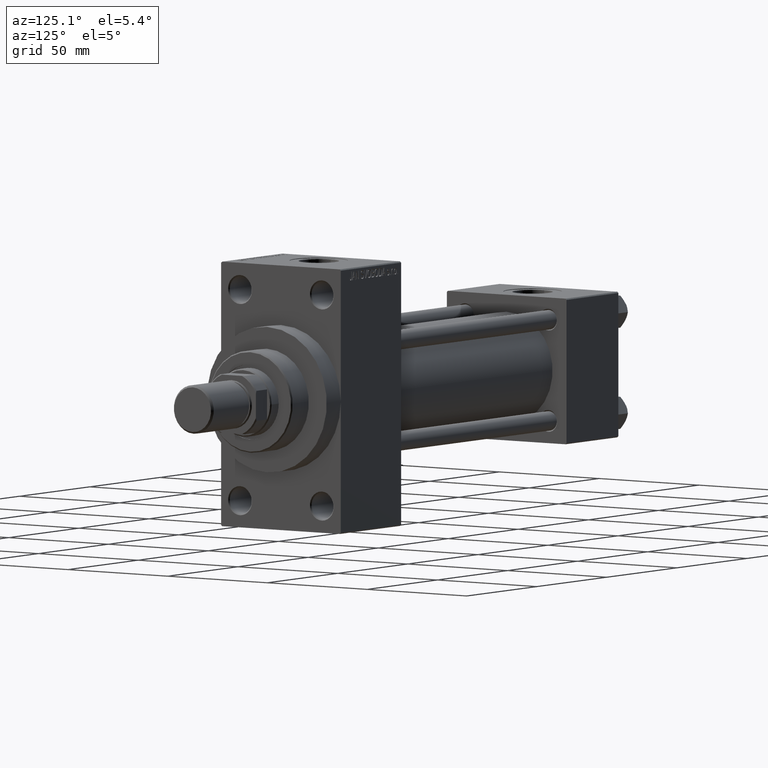
[diagram: clean part render]
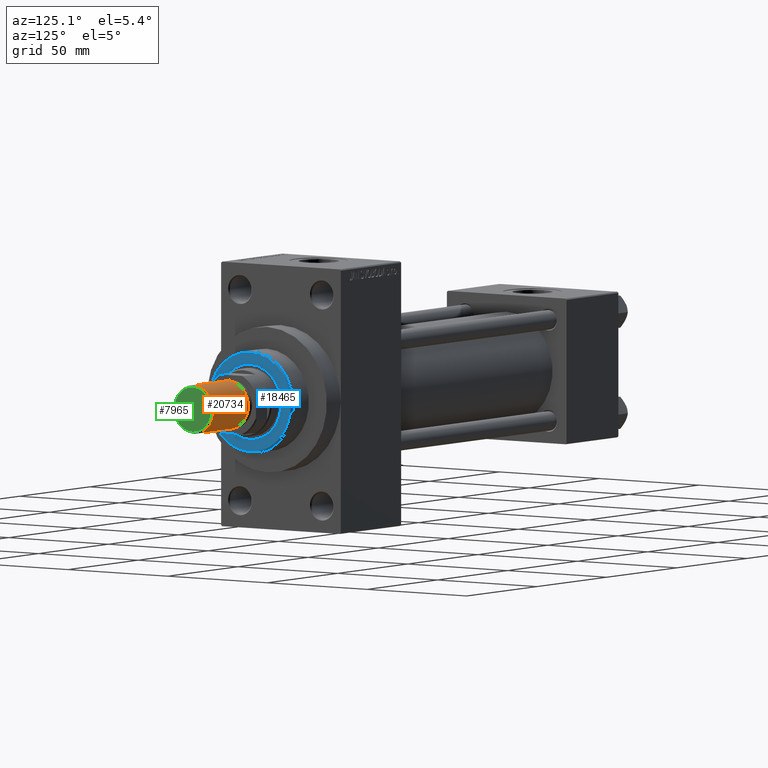
[diagram: same view with three faces highlighted in distinct colors, each labeled with its STEP entity id]
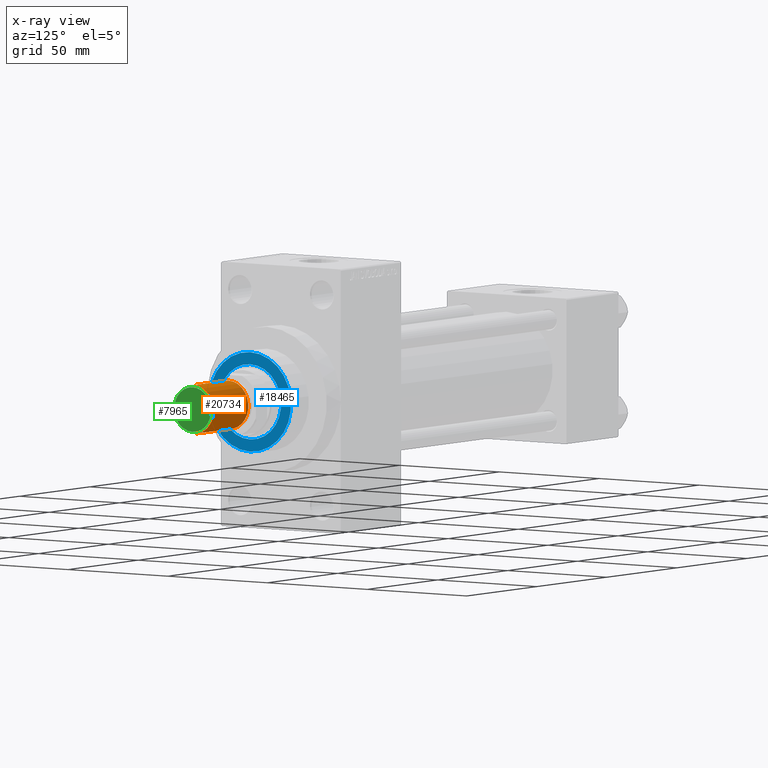
[diagram: x-ray of the same camera — body ghosted, the three highlighted faces saturated]
A machine part, auxiliary view with three faces highlighted in distinct colors.
The next image is the same camera in x-ray (body ghosted, the three faces saturated) — at least one of them is partly hidden behind the body in this view.
Their STEP definitions:

[orange] entity #20734 — the highlighted cylindrical surface (edge-blend (fillet) strip) has radius 10 mm, axis along (1, -0, -0).
#141 = LINE ( 'NONE', #29548, #25993 ) ;
#385 = DIRECTION ( 'NONE',  ( -0.000000000000000000, -0.000000000000000000, -1.000000000000000000 ) ) ;
#1426 = CARTESIAN_POINT ( 'NONE',  ( -10.00000000000000000, 0.000000000000000000, 0.8000000000000055955 ) ) ;
#1491 = VERTEX_POINT ( 'NONE', #1426 ) ;
#2860 = AXIS2_PLACEMENT_3D ( 'NONE', #35367, #46720, #27655 ) ;
#5134 = FACE_OUTER_BOUND ( 'NONE', #16003, .T. ) ;
#6546 = VERTEX_POINT ( 'NONE', #30289 ) ;
#8749 = EDGE_CURVE ( 'NONE', #17932, #6546, #11258, .T. ) ;
#9541 = VERTEX_POINT ( 'NONE', #13482 ) ;
#10123 = ORIENTED_EDGE ( 'NONE', *, *, #29253, .T. ) ;
#10341 = VECTOR ( 'NONE', #33903, 1000.000000000000000 ) ;
#11258 = LINE ( 'NONE', #25931, #10341 ) ;
#11339 = CIRCLE ( 'NONE', #2860, 10.00000000000000000 ) ;
#12136 = CARTESIAN_POINT ( 'NONE',  ( 0.000000000000000000, 0.000000000000000000, 25.50000000000000000 ) ) ;
#13482 = CARTESIAN_POINT ( 'NONE',  ( -10.00000000000000000, 0.000000000000000000, 25.50000000000000000 ) ) ;
#16003 = EDGE_LOOP ( 'NONE', ( #41201, #24946, #10123, #28069 ) ) ;
#16132 = EDGE_CURVE ( 'NONE', #17932, #9541, #11339, .T. ) ;
#17272 = CARTESIAN_POINT ( 'NONE',  ( 0.000000000000000000, 0.000000000000000000, 0.8000000000000055955 ) ) ;
#17706 = CIRCLE ( 'NONE', #23861, 10.00000000000000000 ) ;
#17932 = VERTEX_POINT ( 'NONE', #47563 ) ;
#20580 = AXIS2_PLACEMENT_3D ( 'NONE', #12136, #30687, #45889 ) ;
#20734 = ADVANCED_FACE ( 'NONE', ( #5134 ), #38398, .T. ) ;
#23861 = AXIS2_PLACEMENT_3D ( 'NONE', #17272, #39238, #27435 ) ;
#24946 = ORIENTED_EDGE ( 'NONE', *, *, #8749, .T. ) ;
#25931 = CARTESIAN_POINT ( 'NONE',  ( 10.00000000000000000, 1.224646799147353256E-15, 25.50000000000000000 ) ) ;
#25993 = VECTOR ( 'NONE', #385, 1000.000000000000000 ) ;
#27435 = DIRECTION ( 'NONE',  ( 1.000000000000000000, 0.000000000000000000, 0.000000000000000000 ) ) ;
#27655 = DIRECTION ( 'NONE',  ( 1.000000000000000000, 0.000000000000000000, 0.000000000000000000 ) ) ;
#28069 = ORIENTED_EDGE ( 'NONE', *, *, #41274, .F. ) ;
#29253 = EDGE_CURVE ( 'NONE', #6546, #1491, #17706, .T. ) ;
#29548 = CARTESIAN_POINT ( 'NONE',  ( -10.00000000000000000, 0.000000000000000000, 25.50000000000000000 ) ) ;
#30289 = CARTESIAN_POINT ( 'NONE',  ( 10.00000000000000000, 1.224646799147353256E-15, 0.8000000000000055955 ) ) ;
#30687 = DIRECTION ( 'NONE',  ( -0.000000000000000000, -0.000000000000000000, -1.000000000000000000 ) ) ;
#33903 = DIRECTION ( 'NONE',  ( -0.000000000000000000, -0.000000000000000000, -1.000000000000000000 ) ) ;
#35367 = CARTESIAN_POINT ( 'NONE',  ( 0.000000000000000000, 0.000000000000000000, 25.50000000000000000 ) ) ;
#38398 = CYLINDRICAL_SURFACE ( 'NONE', #20580, 10.00000000000000000 ) ;
#39238 = DIRECTION ( 'NONE',  ( -0.000000000000000000, -0.000000000000000000, 1.000000000000000000 ) ) ;
#41201 = ORIENTED_EDGE ( 'NONE', *, *, #16132, .F. ) ;
#41274 = EDGE_CURVE ( 'NONE', #9541, #1491, #141, .T. ) ;
#45889 = DIRECTION ( 'NONE',  ( -1.000000000000000000, 0.000000000000000000, 0.000000000000000000 ) ) ;
#46720 = DIRECTION ( 'NONE',  ( 0.000000000000000000, 0.000000000000000000, 1.000000000000000000 ) ) ;
#47563 = CARTESIAN_POINT ( 'NONE',  ( 10.00000000000000000, 1.224646799147353256E-15, 25.50000000000000000 ) ) ;

[blue] entity #18465 — the highlighted planar face has unit normal (1, -0, -0).
#4082 = AXIS2_PLACEMENT_3D ( 'NONE', #30009, #29537, #26390 ) ;
#5372 = EDGE_CURVE ( 'NONE', #30260, #6397, #35720, .T. ) ;
#5913 = AXIS2_PLACEMENT_3D ( 'NONE', #41366, #45694, #30481 ) ;
#6397 = VERTEX_POINT ( 'NONE', #46960 ) ;
#7104 = ORIENTED_EDGE ( 'NONE', *, *, #38304, .F. ) ;
#7806 = DIRECTION ( 'NONE',  ( 0.000000000000000000, 0.000000000000000000, 1.000000000000000000 ) ) ;
#8054 = AXIS2_PLACEMENT_3D ( 'NONE', #21162, #35890, #43166 ) ;
#8161 = VERTEX_POINT ( 'NONE', #28784 ) ;
#10932 = ORIENTED_EDGE ( 'NONE', *, *, #5372, .F. ) ;
#12941 = AXIS2_PLACEMENT_3D ( 'NONE', #31296, #46030, #15876 ) ;
#14059 = CIRCLE ( 'NONE', #4082, 20.50000000000000355 ) ;
#15876 = DIRECTION ( 'NONE',  ( 1.000000000000000000, 0.000000000000000000, -0.000000000000000000 ) ) ;
#16108 = FACE_OUTER_BOUND ( 'NONE', #31135, .T. ) ;
#17674 = CIRCLE ( 'NONE', #44696, 20.50000000000000355 ) ;
#18465 = ADVANCED_FACE ( 'NONE', ( #23339, #16108 ), #27674, .T. ) ;
#18846 = ORIENTED_EDGE ( 'NONE', *, *, #24219, .T. ) ;
#19128 = ORIENTED_EDGE ( 'NONE', *, *, #34051, .T. ) ;
#19328 = EDGE_LOOP ( 'NONE', ( #10932, #7104 ) ) ;
#21162 = CARTESIAN_POINT ( 'NONE',  ( 0.000000000000000000, 0.000000000000000000, 55.26000000000000512 ) ) ;
#23339 = FACE_BOUND ( 'NONE', #19328, .T. ) ;
#24219 = EDGE_CURVE ( 'NONE', #8161, #32964, #17674, .T. ) ;
#24355 = CIRCLE ( 'NONE', #5913, 15.50000000000000000 ) ;
#25958 = CARTESIAN_POINT ( 'NONE',  ( 15.50000000000000000, 0.000000000000000000, 55.26000000000000512 ) ) ;
#26390 = DIRECTION ( 'NONE',  ( 1.000000000000000000, 0.000000000000000000, 0.000000000000000000 ) ) ;
#26820 = DIRECTION ( 'NONE',  ( 1.000000000000000000, 0.000000000000000000, 0.000000000000000000 ) ) ;
#27674 = PLANE ( 'NONE',  #12941 ) ;
#28784 = CARTESIAN_POINT ( 'NONE',  ( -20.50000000000000355, 0.000000000000000000, 55.26000000000000512 ) ) ;
#29537 = DIRECTION ( 'NONE',  ( 0.000000000000000000, 0.000000000000000000, 1.000000000000000000 ) ) ;
#30009 = CARTESIAN_POINT ( 'NONE',  ( 0.000000000000000000, 0.000000000000000000, 55.26000000000000512 ) ) ;
#30260 = VERTEX_POINT ( 'NONE', #25958 ) ;
#30481 = DIRECTION ( 'NONE',  ( 1.000000000000000000, 0.000000000000000000, 0.000000000000000000 ) ) ;
#31135 = EDGE_LOOP ( 'NONE', ( #18846, #19128 ) ) ;
#31296 = CARTESIAN_POINT ( 'NONE',  ( 0.000000000000000000, 0.000000000000000000, 55.26000000000000512 ) ) ;
#32946 = CARTESIAN_POINT ( 'NONE',  ( 20.50000000000000355, 2.541142108230758269E-15, 55.26000000000000512 ) ) ;
#32964 = VERTEX_POINT ( 'NONE', #32946 ) ;
#33581 = CARTESIAN_POINT ( 'NONE',  ( 0.000000000000000000, 0.000000000000000000, 55.26000000000000512 ) ) ;
#34051 = EDGE_CURVE ( 'NONE', #32964, #8161, #14059, .T. ) ;
#35720 = CIRCLE ( 'NONE', #8054, 15.50000000000000000 ) ;
#35890 = DIRECTION ( 'NONE',  ( 0.000000000000000000, 0.000000000000000000, 1.000000000000000000 ) ) ;
#38304 = EDGE_CURVE ( 'NONE', #6397, #30260, #24355, .T. ) ;
#41366 = CARTESIAN_POINT ( 'NONE',  ( 0.000000000000000000, 0.000000000000000000, 55.26000000000000512 ) ) ;
#43166 = DIRECTION ( 'NONE',  ( 1.000000000000000000, 0.000000000000000000, 0.000000000000000000 ) ) ;
#44696 = AXIS2_PLACEMENT_3D ( 'NONE', #33581, #7806, #26820 ) ;
#45694 = DIRECTION ( 'NONE',  ( 0.000000000000000000, 0.000000000000000000, 1.000000000000000000 ) ) ;
#46030 = DIRECTION ( 'NONE',  ( 0.000000000000000000, 0.000000000000000000, 1.000000000000000000 ) ) ;
#46960 = CARTESIAN_POINT ( 'NONE',  ( -15.50000000000000000, 1.898202538678397557E-15, 55.26000000000000512 ) ) ;

[green] entity #7965 — the highlighted planar face has unit normal (-1, 0, 0).
#2060 = DIRECTION ( 'NONE',  ( 1.000000000000000000, 0.000000000000000000, -0.000000000000000000 ) ) ;
#3004 = CARTESIAN_POINT ( 'NONE',  ( 0.000000000000000000, 0.000000000000000000, 0.000000000000000000 ) ) ;
#6360 = CARTESIAN_POINT ( 'NONE',  ( 9.199999999999992184, 0.000000000000000000, 0.000000000000000000 ) ) ;
#7517 = CIRCLE ( 'NONE', #46004, 9.199999999999992184 ) ;
#7965 = ADVANCED_FACE ( 'NONE', ( #31694 ), #9052, .F. ) ;
#9052 = PLANE ( 'NONE',  #24105 ) ;
#9934 = DIRECTION ( 'NONE',  ( -0.000000000000000000, -0.000000000000000000, -1.000000000000000000 ) ) ;
#14527 = CARTESIAN_POINT ( 'NONE',  ( -9.199999999999992184, 1.175660927181458645E-15, 0.000000000000000000 ) ) ;
#16717 = EDGE_CURVE ( 'NONE', #45981, #19814, #7517, .T. ) ;
#17677 = DIRECTION ( 'NONE',  ( 1.000000000000000000, 0.000000000000000000, 0.000000000000000000 ) ) ;
#19814 = VERTEX_POINT ( 'NONE', #14527 ) ;
#23080 = AXIS2_PLACEMENT_3D ( 'NONE', #31871, #9934, #39585 ) ;
#24105 = AXIS2_PLACEMENT_3D ( 'NONE', #30751, #27598, #2060 ) ;
#26720 = ORIENTED_EDGE ( 'NONE', *, *, #27687, .T. ) ;
#27598 = DIRECTION ( 'NONE',  ( 0.000000000000000000, 0.000000000000000000, 1.000000000000000000 ) ) ;
#27687 = EDGE_CURVE ( 'NONE', #19814, #45981, #39270, .T. ) ;
#29408 = ORIENTED_EDGE ( 'NONE', *, *, #16717, .T. ) ;
#30751 = CARTESIAN_POINT ( 'NONE',  ( 0.000000000000000000, 0.000000000000000000, 0.000000000000000000 ) ) ;
#31694 = FACE_OUTER_BOUND ( 'NONE', #33028, .T. ) ;
#31871 = CARTESIAN_POINT ( 'NONE',  ( 0.000000000000000000, 0.000000000000000000, 0.000000000000000000 ) ) ;
#32647 = DIRECTION ( 'NONE',  ( -0.000000000000000000, -0.000000000000000000, -1.000000000000000000 ) ) ;
#33028 = EDGE_LOOP ( 'NONE', ( #29408, #26720 ) ) ;
#39270 = CIRCLE ( 'NONE', #23080, 9.199999999999992184 ) ;
#39585 = DIRECTION ( 'NONE',  ( 1.000000000000000000, 0.000000000000000000, 0.000000000000000000 ) ) ;
#45981 = VERTEX_POINT ( 'NONE', #6360 ) ;
#46004 = AXIS2_PLACEMENT_3D ( 'NONE', #3004, #32647, #17677 ) ;